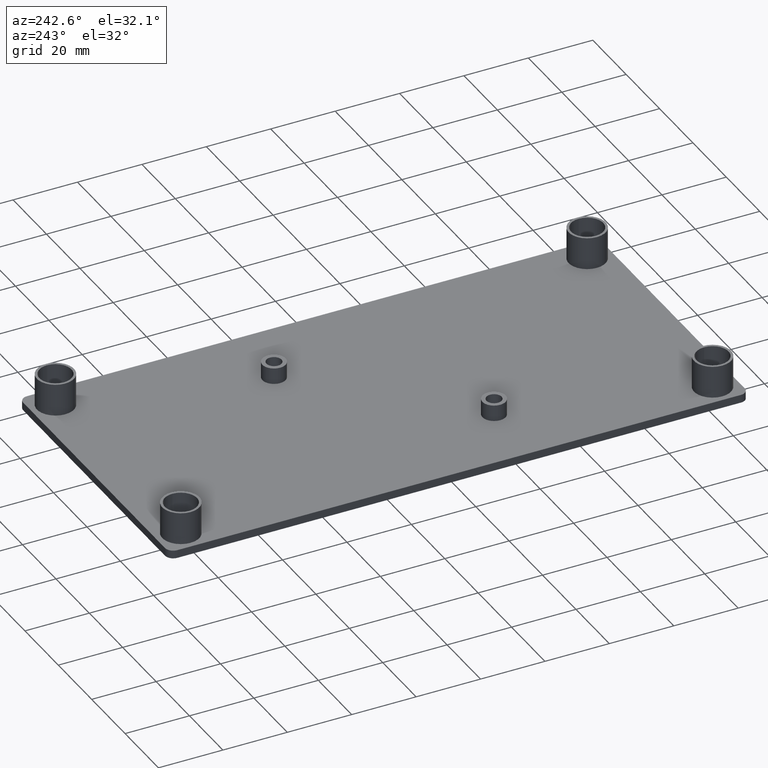
[diagram: clean part render]
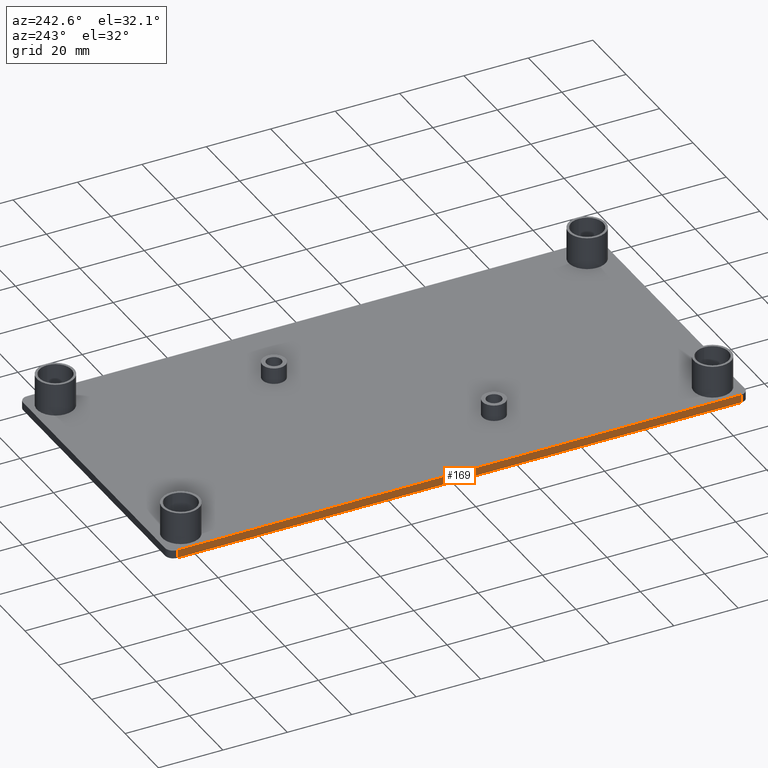
[diagram: same view with one face highlighted and labeled with its STEP entity id]
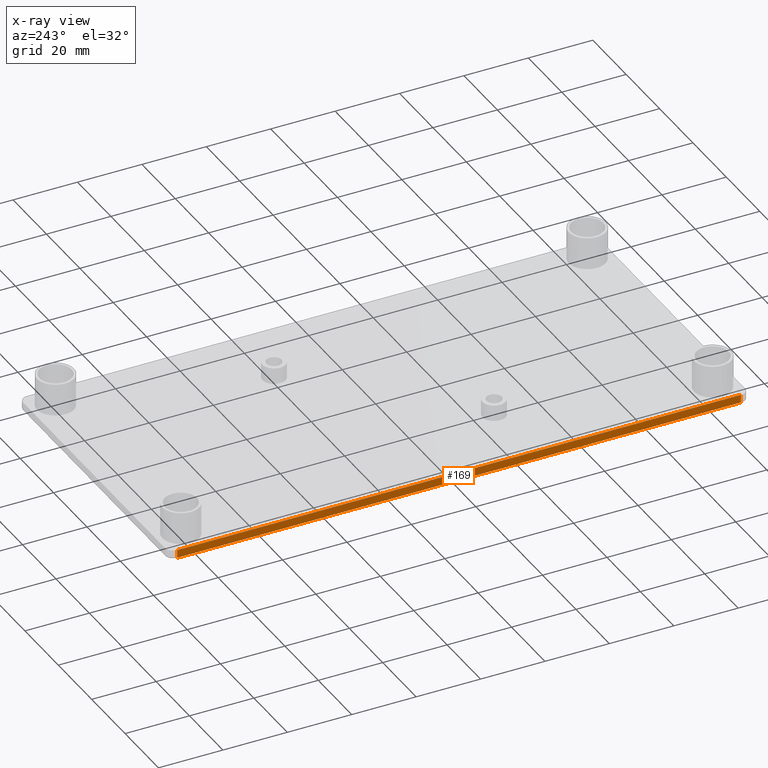
[diagram: x-ray of the same camera — body ghosted, the highlighted face saturated]
A machine part, auxiliary view. The second image highlights one B-rep face of the part: STEP entity #169.
The next image is the same camera in x-ray: the body ghosted, the highlighted face saturated — about 0% of this face is hidden behind the body in this view.
In plain terms, the highlighted planar face has unit normal (1, 0, 0).
Its self-contained STEP definition (entity closure, byte-faithful):
#112=CARTESIAN_POINT('',(-89.999956333334652,87.500000499999999,-2.500000000000000));
#113=VERTEX_POINT('',#112);
#121=CARTESIAN_POINT('',(-89.999956333334652,87.500000499999999,0.0));
#122=VERTEX_POINT('',#121);
#123=CARTESIAN_POINT('',(-89.999956333334652,87.500000499999999,0.0));
#124=DIRECTION('',(0.0,0.0,-1.0));
#125=VECTOR('',#124,2.500000000000000);
#126=LINE('',#123,#125);
#127=EDGE_CURVE('',#122,#113,#126,.T.);
#139=CARTESIAN_POINT('',(-89.999956333334652,87.500000499999999,0.0));
#140=DIRECTION('',(1.000000000000000,0.000000015238110,0.0));
#141=DIRECTION('',(0.000000015238110,-1.000000000000000,0.0));
#142=AXIS2_PLACEMENT_3D('',#139,#140,#141);
#143=PLANE('',#142);
#144=ORIENTED_EDGE('',*,*,#127,.T.);
#145=CARTESIAN_POINT('',(-89.999953666665334,-87.499999500000001,-2.500000000000000));
#146=VERTEX_POINT('',#145);
#147=CARTESIAN_POINT('',(-89.999956333334652,87.500000499999999,-2.500000000000000));
#148=DIRECTION('',(0.000000015238110,-1.000000000000000,0.0));
#149=VECTOR('',#148,175.000000000000030);
#150=LINE('',#147,#149);
#151=EDGE_CURVE('',#113,#146,#150,.T.);
#152=ORIENTED_EDGE('',*,*,#151,.T.);
#153=CARTESIAN_POINT('',(-89.999953666665334,-87.499999500000001,0.0));
#154=VERTEX_POINT('',#153);
#155=CARTESIAN_POINT('',(-89.999953666665334,-87.499999500000001,0.0));
#156=DIRECTION('',(0.0,0.0,-1.0));
#157=VECTOR('',#156,2.500000000000000);
#158=LINE('',#155,#157);
#159=EDGE_CURVE('',#154,#146,#158,.T.);
#160=ORIENTED_EDGE('',*,*,#159,.F.);
#161=CARTESIAN_POINT('',(-89.999956333334652,87.500000499999999,0.0));
#162=DIRECTION('',(0.000000015238110,-1.000000000000000,0.0));
#163=VECTOR('',#162,175.000000000000030);
#164=LINE('',#161,#163);
#165=EDGE_CURVE('',#122,#154,#164,.T.);
#166=ORIENTED_EDGE('',*,*,#165,.F.);
#167=EDGE_LOOP('',(#144,#152,#160,#166));
#168=FACE_OUTER_BOUND('',#167,.T.);
#169=ADVANCED_FACE('',(#168),#143,.F.);